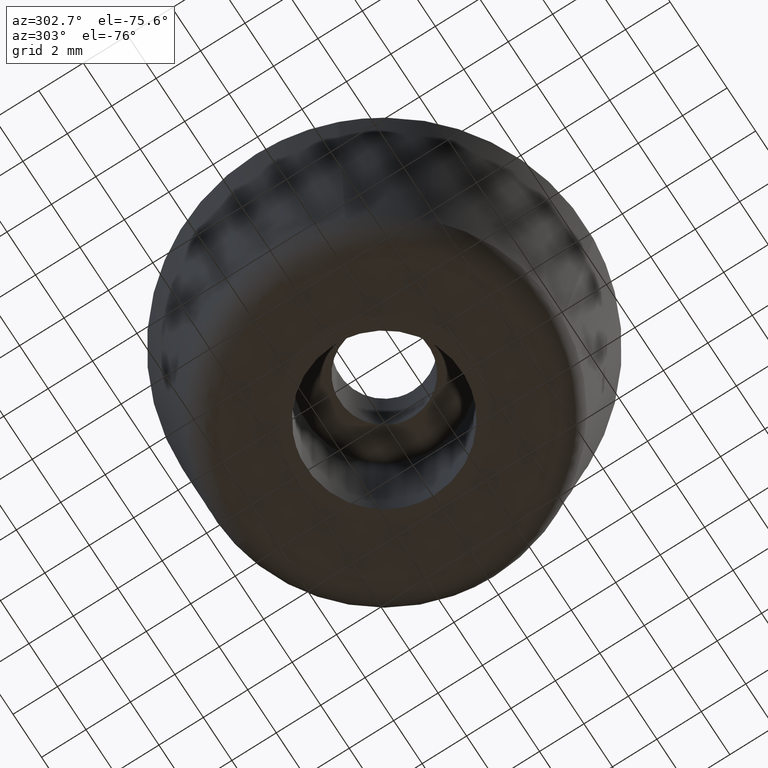
[diagram: clean part render]
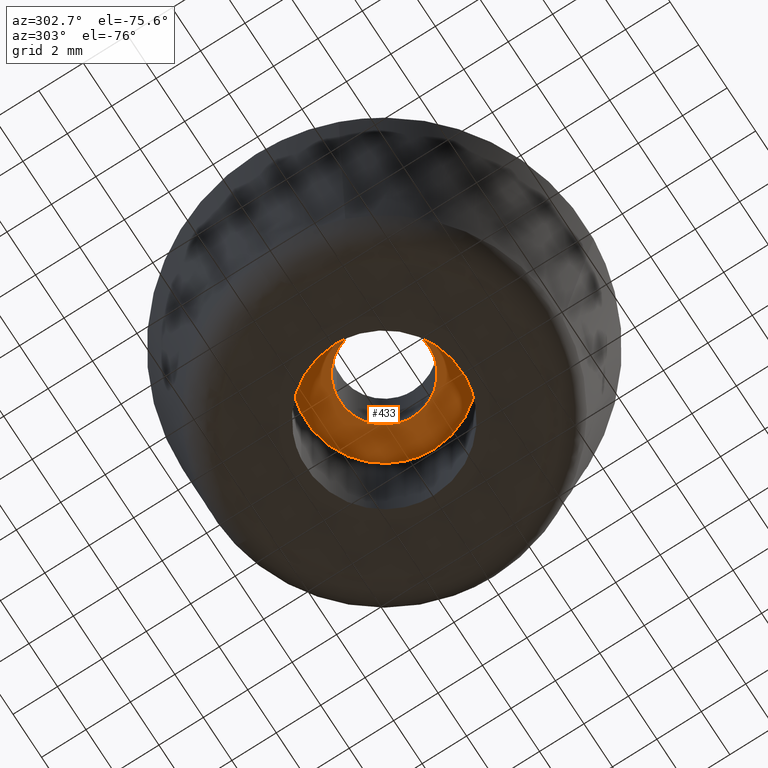
[diagram: same view with one face highlighted and labeled with its STEP entity id]
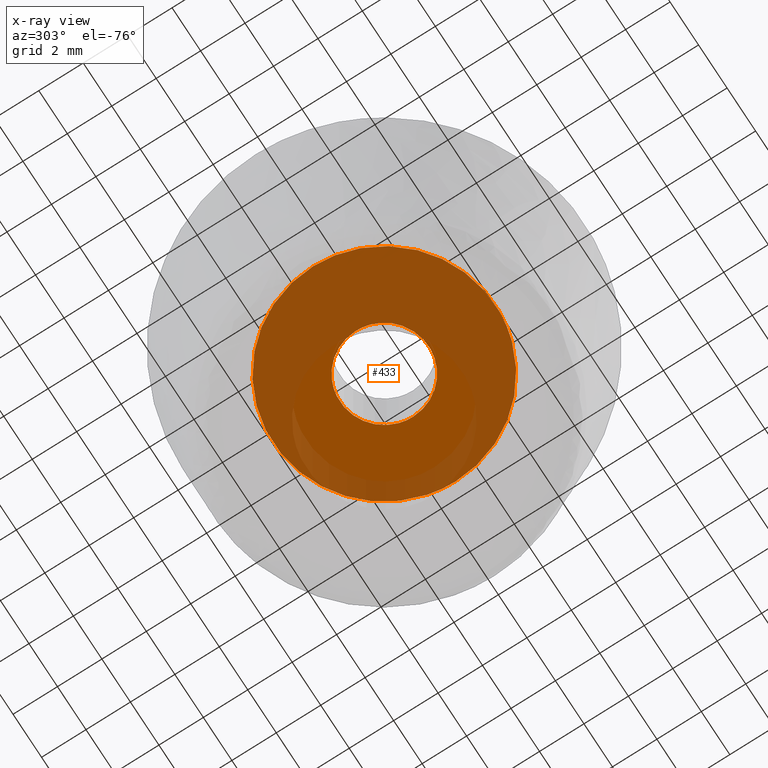
[diagram: x-ray of the same camera — body ghosted, the highlighted face saturated]
A machine part, auxiliary view. The second image highlights one B-rep face of the part: STEP entity #433.
The next image is the same camera in x-ray: the body ghosted, the highlighted face saturated — about 71% of this face is hidden behind the body in this view.
In plain terms, the highlighted face is a freeform B-spline surface patch.
Its self-contained STEP definition (entity closure, byte-faithful):
#66=CARTESIAN_POINT('',(-0.236066494659711,1.986019287442879,7.000000000000068));
#67=VERTEX_POINT('',#66);
#68=CARTESIAN_POINT('',(2.0,0.0,7.0));
#69=VERTEX_POINT('',#68);
#70=CARTESIAN_POINT('',(-0.236066494659711,1.986019287442879,7.000000000000068));
#71=CARTESIAN_POINT('',(-0.118447241539170,2.000000000000000,7.0));
#72=CARTESIAN_POINT('',(0.0,2.0,7.0));
#73=CARTESIAN_POINT('',(2.000000000000000,2.000000000000000,6.999999999999999));
#74=CARTESIAN_POINT('',(2.0,0.0,7.0));
#82=(BOUNDED_CURVE()B_SPLINE_CURVE(2,(#70,#71,#72,#73,#74),.UNSPECIFIED.,.F.,.U.)B_SPLINE_CURVE_WITH_KNOTS((3,2,3),(0.229562641551761,0.250000000000000,0.500000000000000),.UNSPECIFIED.)CURVE()GEOMETRIC_REPRESENTATION_ITEM()RATIONAL_B_SPLINE_CURVE((0.956027083545816,0.976056145200204,1.0,0.707106781186548,1.0))REPRESENTATION_ITEM(''));
#83=EDGE_CURVE('',#67,#69,#82,.T.);
#85=CARTESIAN_POINT('',(0.122097079084357,-1.996269596842838,7.0));
#86=VERTEX_POINT('',#85);
#87=CARTESIAN_POINT('',(2.0,0.0,7.0));
#88=CARTESIAN_POINT('',(2.000000000000000,-1.881412133783748,7.0));
#89=CARTESIAN_POINT('',(0.122097079084357,-1.996269596842838,7.0));
#97=(BOUNDED_CURVE()B_SPLINE_CURVE(2,(#87,#88,#89),.UNSPECIFIED.,.F.,.U.)B_SPLINE_CURVE_WITH_KNOTS((3,3),(0.500000000000000,0.739332962239438),.UNSPECIFIED.)CURVE()GEOMETRIC_REPRESENTATION_ITEM()RATIONAL_B_SPLINE_CURVE((1.0,0.719603993286130,0.976072041667779))REPRESENTATION_ITEM(''));
#98=EDGE_CURVE('',#69,#86,#97,.T.);
#165=CARTESIAN_POINT('',(-2.0,0.0,7.0));
#166=VERTEX_POINT('',#165);
#167=CARTESIAN_POINT('',(-2.0,0.0,7.0));
#168=CARTESIAN_POINT('',(-2.000000000000000,1.776350830520354,6.999999999999999));
#169=CARTESIAN_POINT('',(-0.236066494659711,1.986019287442879,7.000000000000068));
#177=(BOUNDED_CURVE()B_SPLINE_CURVE(2,(#167,#168,#169),.UNSPECIFIED.,.F.,.U.)B_SPLINE_CURVE_WITH_KNOTS((3,3),(0.0,0.229562641551761),.UNSPECIFIED.)CURVE()GEOMETRIC_REPRESENTATION_ITEM()RATIONAL_B_SPLINE_CURVE((1.0,0.731050635986344,0.956027083545816))REPRESENTATION_ITEM(''));
#178=EDGE_CURVE('',#166,#67,#177,.T.);
#212=CARTESIAN_POINT('',(0.122097079084357,-1.996269596842838,6.999999999999999));
#213=CARTESIAN_POINT('',(0.061105526611862,-2.000000000000000,7.0));
#214=CARTESIAN_POINT('',(0.0,-2.0,7.0));
#215=CARTESIAN_POINT('',(-2.000000000000000,-2.000000000000000,6.999999999999999));
#216=CARTESIAN_POINT('',(-2.0,0.0,7.0));
#224=(BOUNDED_CURVE()B_SPLINE_CURVE(2,(#212,#213,#214,#215,#216),.UNSPECIFIED.,.F.,.U.)B_SPLINE_CURVE_WITH_KNOTS((3,2,3),(0.739332962239437,0.750000000000000,1.0),.UNSPECIFIED.)CURVE()GEOMETRIC_REPRESENTATION_ITEM()RATIONAL_B_SPLINE_CURVE((0.976072041667777,0.987502787900416,1.0,0.707106781186548,1.0))REPRESENTATION_ITEM(''));
#225=EDGE_CURVE('',#86,#166,#224,.T.);
#252=CARTESIAN_POINT('',(-0.590169455109429,4.965047836048797,6.999999999999966));
#253=VERTEX_POINT('',#252);
#254=CARTESIAN_POINT('',(5.0,0.0,7.0));
#255=VERTEX_POINT('',#254);
#256=CARTESIAN_POINT('',(-0.590169455109429,4.965047836048797,6.999999999999966));
#257=CARTESIAN_POINT('',(-0.296119730090254,4.999999999999999,7.000000000000001));
#258=CARTESIAN_POINT('',(0.0,5.0,7.0));
#259=CARTESIAN_POINT('',(5.000000000000001,5.000000000000001,6.999999999999999));
#260=CARTESIAN_POINT('',(5.0,0.0,7.0));
#268=(BOUNDED_CURVE()B_SPLINE_CURVE(2,(#256,#257,#258,#259,#260),.UNSPECIFIED.,.F.,.U.)B_SPLINE_CURVE_WITH_KNOTS((3,2,3),(0.229562531999888,0.250000000000000,0.500000000000000),.UNSPECIFIED.)CURVE()GEOMETRIC_REPRESENTATION_ITEM()RATIONAL_B_SPLINE_CURVE((0.956026868819430,0.976056016852201,1.0,0.707106781186548,1.0))REPRESENTATION_ITEM(''));
#269=EDGE_CURVE('',#253,#255,#268,.T.);
#310=CARTESIAN_POINT('',(0.305237011435701,-4.990674339888082,7.000000000000143));
#311=VERTEX_POINT('',#310);
#317=CARTESIAN_POINT('',(5.0,0.0,7.0));
#318=CARTESIAN_POINT('',(4.999999999999999,-4.703535703620300,6.999999999999999));
#319=CARTESIAN_POINT('',(0.305237011435701,-4.990674339888082,7.000000000000143));
#327=(BOUNDED_CURVE()B_SPLINE_CURVE(2,(#317,#318,#319),.UNSPECIFIED.,.F.,.U.)B_SPLINE_CURVE_WITH_KNOTS((3,3),(0.500000000000000,0.739333158837129),.UNSPECIFIED.)CURVE()GEOMETRIC_REPRESENTATION_ITEM()RATIONAL_B_SPLINE_CURVE((1.0,0.719603762957608,0.976072463014418))REPRESENTATION_ITEM(''));
#328=EDGE_CURVE('',#255,#311,#327,.T.);
#351=CARTESIAN_POINT('',(-5.0,0.0,7.0));
#352=VERTEX_POINT('',#351);
#353=CARTESIAN_POINT('',(-5.0,0.0,7.0));
#354=CARTESIAN_POINT('',(-5.0,4.440874177357000,6.999999999999999));
#355=CARTESIAN_POINT('',(-0.590169455109429,4.965047836048797,6.999999999999966));
#363=(BOUNDED_CURVE()B_SPLINE_CURVE(2,(#353,#354,#355),.UNSPECIFIED.,.F.,.U.)B_SPLINE_CURVE_WITH_KNOTS((3,3),(0.0,0.229562531999888),.UNSPECIFIED.)CURVE()GEOMETRIC_REPRESENTATION_ITEM()RATIONAL_B_SPLINE_CURVE((1.0,0.731050764334346,0.956026868819430))REPRESENTATION_ITEM(''));
#364=EDGE_CURVE('',#352,#253,#363,.T.);
#366=CARTESIAN_POINT('',(0.305237011435701,-4.990674339888082,7.000000000000143));
#367=CARTESIAN_POINT('',(0.152760965402070,-5.0,7.000000000000001));
#368=CARTESIAN_POINT('',(0.0,-5.0,7.0));
#369=CARTESIAN_POINT('',(-5.000000000000001,-5.000000000000001,6.999999999999999));
#370=CARTESIAN_POINT('',(-5.0,0.0,7.0));
#378=(BOUNDED_CURVE()B_SPLINE_CURVE(2,(#366,#367,#368,#369,#370),.UNSPECIFIED.,.F.,.U.)B_SPLINE_CURVE_WITH_KNOTS((3,2,3),(0.739333158837129,0.750000000000000,1.0),.UNSPECIFIED.)CURVE()GEOMETRIC_REPRESENTATION_ITEM()RATIONAL_B_SPLINE_CURVE((0.976072463014418,0.987503018228940,1.0,0.707106781186548,1.0))REPRESENTATION_ITEM(''));
#379=EDGE_CURVE('',#311,#352,#378,.T.);
#416=CARTESIAN_POINT('',(-5.499499980618060,-5.499378285062307,7.0));
#417=CARTESIAN_POINT('',(5.499500248838961,-5.499378285062307,7.0));
#418=CARTESIAN_POINT('',(-5.499499980618060,5.499409041059009,7.0));
#419=CARTESIAN_POINT('',(5.499500248838961,5.499409041059009,7.0));
#420=B_SPLINE_SURFACE_WITH_KNOTS('',1,1,((#416,#418),(#417,#419)),.UNSPECIFIED.,.F.,.F.,.U.,(2,2),(2,2),(0.0,10.999000229457019),(0.0,10.998787326121320),.UNSPECIFIED.);
#421=ORIENTED_EDGE('',*,*,#364,.T.);
#422=ORIENTED_EDGE('',*,*,#269,.T.);
#423=ORIENTED_EDGE('',*,*,#328,.T.);
#424=ORIENTED_EDGE('',*,*,#379,.T.);
#425=EDGE_LOOP('',(#421,#422,#423,#424));
#426=FACE_OUTER_BOUND('',#425,.T.);
#427=ORIENTED_EDGE('',*,*,#98,.F.);
#428=ORIENTED_EDGE('',*,*,#83,.F.);
#429=ORIENTED_EDGE('',*,*,#178,.F.);
#430=ORIENTED_EDGE('',*,*,#225,.F.);
#431=EDGE_LOOP('',(#427,#428,#429,#430));
#432=FACE_BOUND('',#431,.T.);
#433=ADVANCED_FACE('',(#426,#432),#420,.F.);